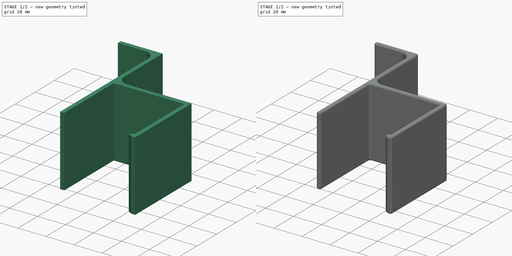
[diagram: build sequence overview — one tinted view per stage of 2, left to right]
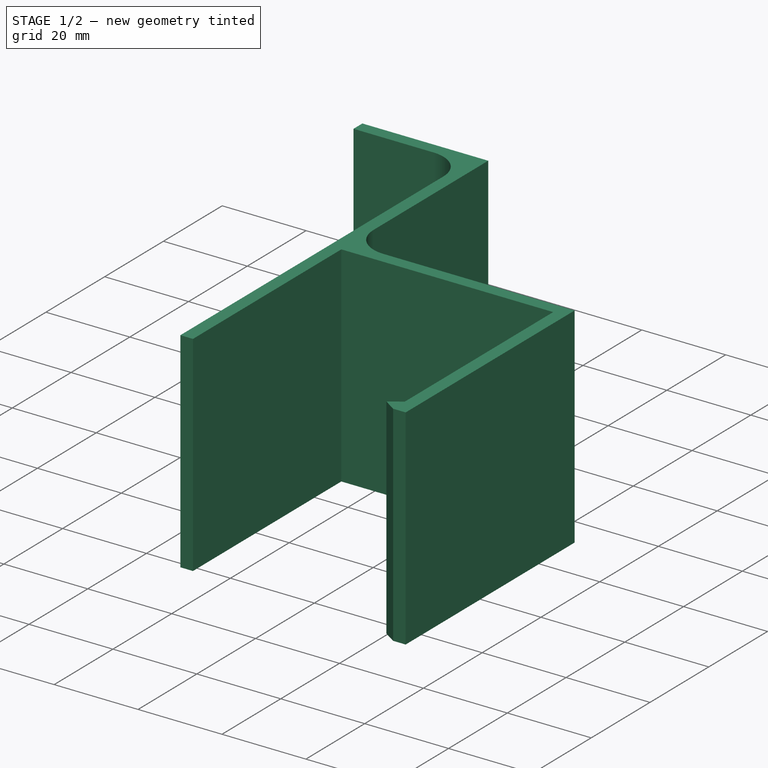
[diagram: stage 1 of 2 — iso view after this stage's code; geometry added in this stage tinted green]
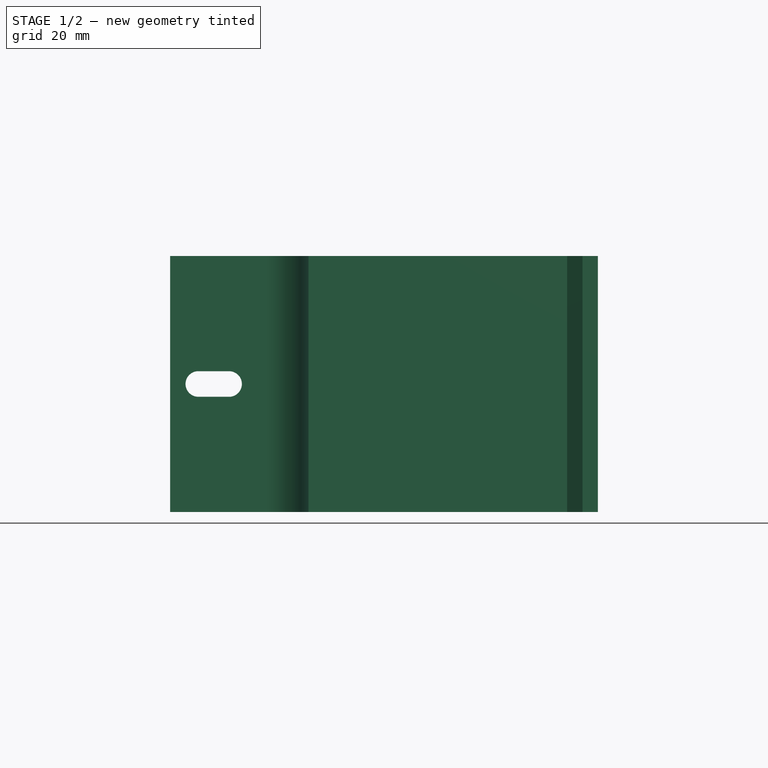
[diagram: stage 1 of 2 — front view after this stage's code; geometry added in this stage tinted green]
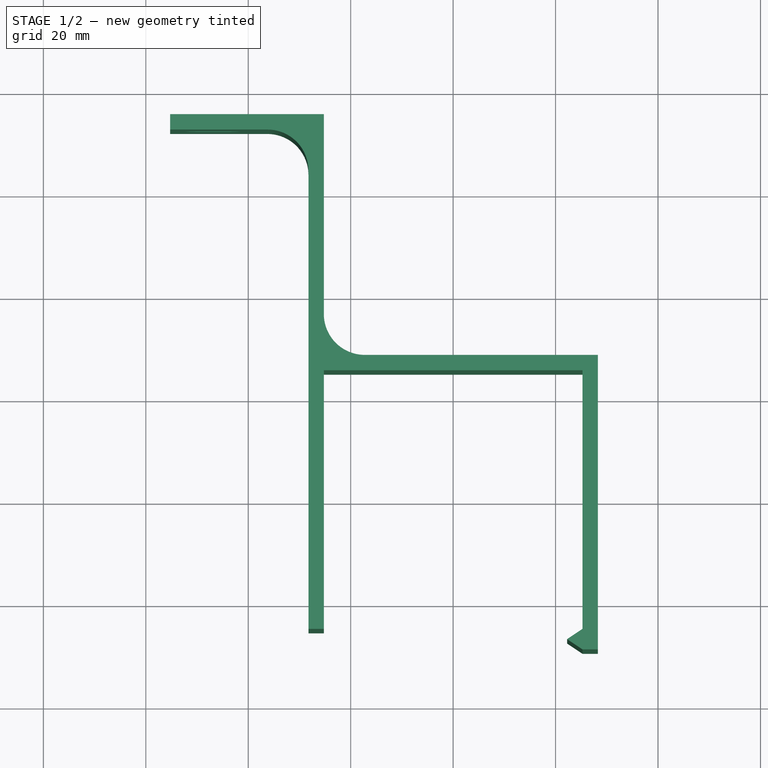
[diagram: stage 1 of 2 — top view after this stage's code; geometry added in this stage tinted green]
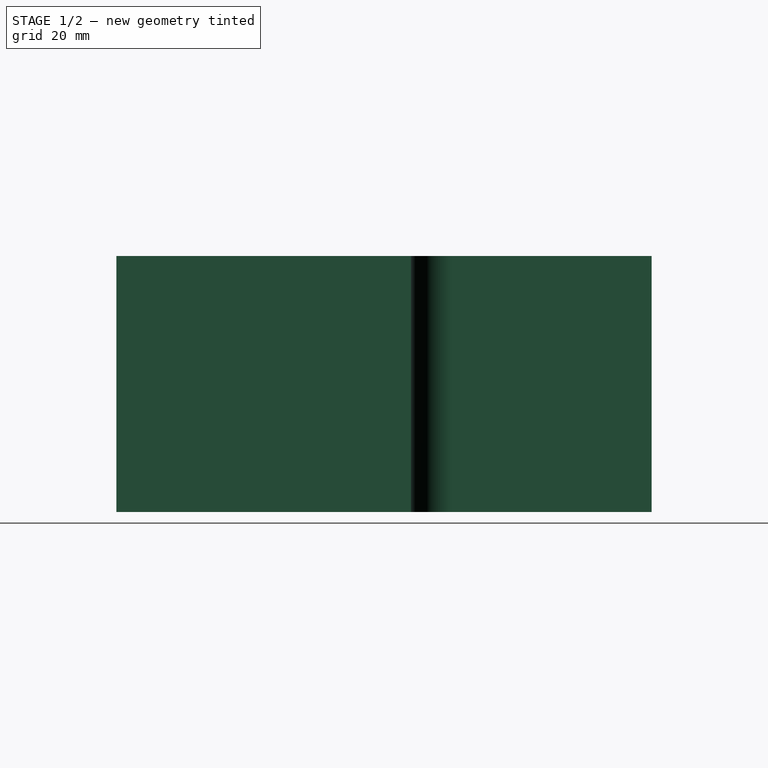
[diagram: stage 1 of 2 — right view after this stage's code; geometry added in this stage tinted green]
FCSTD DOCUMENT  (FreeCAD 0.18.3R)
Label: Hanger
License: All rights reserved
LicenseURL: http://en.wikipedia.org/wiki/All_rights_reserved
objects: Sketcher::SketchObject×2, PartDesign::Pad×1, PartDesign::Pocket×1, PartDesign::Fillet×1, PartDesign::Body×1, App::Part×1
note: 8 computed .brp shape members not serialized (recipe doc carries the construction recipe); baked Part::Feature solids carry a one-line shape summary decoded from their .brp

FEATURE [Sketcher::SketchObject] Sketch
  MapMode = 5
  Support = -> [XY_Plane001]
  sketch-geometry (21):
    g0: LineSegment StartX=-17.25 StartY=28.25 StartZ=0 EndX=28.25 EndY=28.25 EndZ=0
    g1: LineSegment StartX=28.25 StartY=28.25 StartZ=0 EndX=28.25 EndY=-29.25 EndZ=0
    g2: LineSegment [constr] StartX=28.25 StartY=-25.25 StartZ=0 EndX=25.25 EndY=-25.25 EndZ=0
    g3: LineSegment StartX=25.25 StartY=-25.25 StartZ=0 EndX=25.25 EndY=25.25 EndZ=0
    g4: LineSegment StartX=25.25 StartY=25.25 StartZ=0 EndX=-25.25 EndY=25.25 EndZ=0
    g5: LineSegment StartX=-25.25 StartY=25.25 StartZ=0 EndX=-25.25 EndY=-25.25 EndZ=0
    g6: LineSegment StartX=-25.25 StartY=-25.25 StartZ=0 EndX=-28.25 EndY=-25.25 EndZ=0
    g7: LineSegment StartX=-28.25 StartY=-25.25 StartZ=0 EndX=-28.25 EndY=64.25 EndZ=0
    g8: LineSegment [constr] StartX=-25.25 StartY=-25.25 StartZ=0 EndX=25.25 EndY=-25.25 EndZ=0
    g9: LineSegment StartX=25.25 StartY=-25.25 StartZ=0 EndX=22.25 EndY=-27.25 EndZ=0
    g10: LineSegment StartX=22.25 StartY=-27.25 StartZ=0 EndX=25.25 EndY=-29.25 EndZ=0
    g11: LineSegment StartX=25.25 StartY=-29.25 StartZ=0 EndX=28.25 EndY=-29.25 EndZ=0
    g12: LineSegment [constr] StartX=25.25 StartY=-25.25 StartZ=0 EndX=25.25 EndY=-29.25 EndZ=0
    g13: LineSegment [constr] StartX=25.25 StartY=25.25 StartZ=0 EndX=25.25 EndY=28.25 EndZ=0
    g14: LineSegment StartX=-25.25 StartY=75.25 StartZ=0 EndX=-25.25 EndY=36.25 EndZ=0
    g15: LineSegment [constr] StartX=-25.25 StartY=36.25 StartZ=0 EndX=-25.25 EndY=25.25 EndZ=0
    g16: ArcOfCircle CenterX=-17.25 CenterY=36.25 CenterZ=0 NormalX=0 NormalY=0 NormalZ=1 AngleXU=0 Radius=8 StartAngle=3.14159 EndAngle=4.71239
    g17: LineSegment StartX=-25.25 StartY=75.25 StartZ=0 EndX=-55.25 EndY=75.25 EndZ=0
    g18: LineSegment StartX=-55.25 StartY=75.25 StartZ=0 EndX=-55.25 EndY=72.25 EndZ=0
    g19: LineSegment StartX=-55.25 StartY=72.25 StartZ=0 EndX=-36.25 EndY=72.25 EndZ=0
    g20: ArcOfCircle CenterX=-36.25 CenterY=64.25 CenterZ=0 NormalX=0 NormalY=0 NormalZ=1 AngleXU=0 Radius=8 StartAngle=6e-16 EndAngle=1.5708
  constraints (57):
    c: Horizontal(g0)
    c: Coincident(g0,g1)
    c: Vertical(g1)
    c: Horizontal(g2)
    c: Coincident(g2,g3)
    c: Vertical(g3)
    c: Coincident(g3,g4)
    c: Horizontal(g4)
    c: Coincident(g4,g5)
    c: Vertical(g5)
    c: Coincident(g5,g6)
    c: Horizontal(g6)
    c: Coincident(g6,g7)
    c: Vertical(g7)
    c: Coincident(g8,g5)
    c: Coincident(g8,g2)
    c: Horizontal(g8)
    c: Equal(g6,g2)
    c: DistanceX(g4,g4) = 50.5  'Distance'
    c: Equal(g4,g5)
    c: PointOnObject(g2,g1)
    c: Coincident(g3,g9)
    c: Coincident(g9,g10)
    c: Coincident(g10,g11)
    c: Horizontal(g11)
    c: Coincident(g1,g11)
    c: Coincident(g12,g3)
    c: Coincident(g12,g10)
    c: Vertical(g12)
    c: Equal(g9,g10)
    c: DistanceY(g12,g12) = 4
    c: DistanceX(g9,g10) = 3
    c: Symmetric(g5,g3,g-1)  '__ANCHOR__'
    c: DistanceX(g6,g6) = 3
    c: Coincident(g13,g3)
    c: PointOnObject(g13,g0)
    c: Vertical(g13)
    c: Equal(g13,g2)
    c: Vertical(g14)
    c: Coincident(g15,g14)
    c: Coincident(g15,g4)
    c: Vertical(g15)
    c: Tangent(g16,g14) = -1.5708
    c: Tangent(g0,g16) = -1.5708
    c: Radius(g16) = 8
    c: Coincident(g14,g17)
    c: Horizontal(g17)
    c: Coincident(g17,g18)
    c: Vertical(g18)
    c: Coincident(g18,g19)
    c: Horizontal(g19)
    c: Tangent(g7,g20) = -1.5708
    c: Tangent(g19,g20) = 1.5708
    c: Equal(g13,g18)
    c: Equal(g20,g16)
    c: DistanceY(g4,g14) = 50
    c: DistanceX(g17,g14) = 30  'FlapLength'
FEATURE [PartDesign::Pad] Pad
  Length = 50
  Length2 = 100
  Profile = -> Sketch
  Type = 0
FEATURE [Sketcher::SketchObject] Sketch001
  MapMode = 5
  Placement = pos=(0,0,0) rot=(1,0,0;1.5708rad)
  Support = -> [XZ_Plane001]
  expr: Constraints[10] = Sketch.Constraints.Distance / 2 + Sketch.Constraints.FlapLength - Constraints.HoleLength / 2 - Constraints.HoleRadius - 3mm
  expr: Constraints[8] = Pad.Length / 2
  sketch-geometry (5):
    g0: ArcOfCircle CenterX=-49.75 CenterY=25 CenterZ=0 NormalX=0 NormalY=0 NormalZ=1 AngleXU=0 Radius=2.5 StartAngle=1.5708 EndAngle=4.71239
    g1: ArcOfCircle CenterX=-43.75 CenterY=25 CenterZ=0 NormalX=0 NormalY=0 NormalZ=1 AngleXU=0 Radius=2.5 StartAngle=4.71239 EndAngle=7.85398
    g2: LineSegment StartX=-49.75 StartY=22.5 StartZ=0 EndX=-43.75 EndY=22.5 EndZ=0
    g3: LineSegment StartX=-49.75 StartY=27.5 StartZ=0 EndX=-43.75 EndY=27.5 EndZ=0
    g4: GeomPoint X=-46.75 Y=25 Z=0
  constraints (11):
    c: Tangent(g0,g3) = 1.5708
    c: Tangent(g0,g2) = -1.5708
    c: Tangent(g2,g1) = -1.5708
    c: Tangent(g3,g1) = 1.5708
    c: Horizontal(g2)
    c: Equal(g0,g1)
    c: Radius(g1) = 2.5  'HoleRadius'
    c: DistanceX(g3,g3) = 6  'HoleLength'
    c: DistanceY(g-1,g1) = 25
    c: Symmetric(g0,g1,g4)
    c: DistanceX(g4,g-1) = 46.75
FEATURE [PartDesign::Pocket] Pocket
  BaseFeature = -> Pad
  Length = 5
  Length2 = 100
  Profile = -> Sketch001
  Type = 1
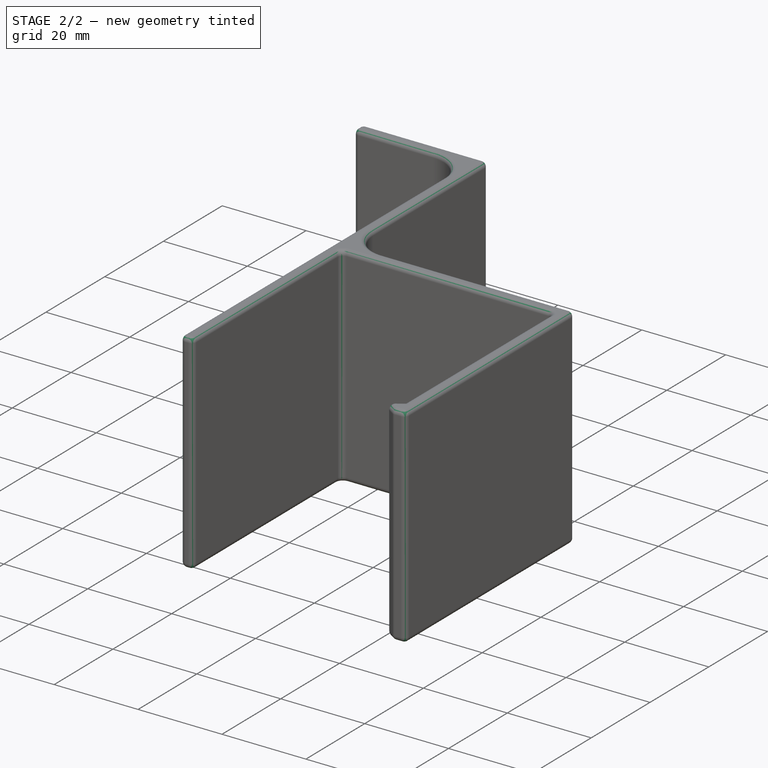
[diagram: stage 2 of 2 — iso view after this stage's code; geometry added in this stage tinted green]
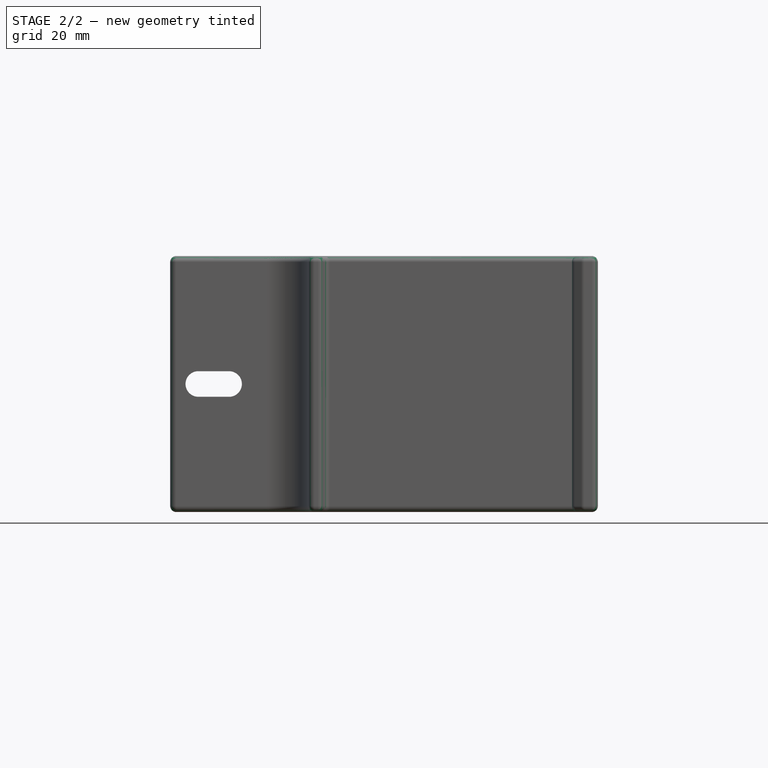
[diagram: stage 2 of 2 — front view after this stage's code; geometry added in this stage tinted green]
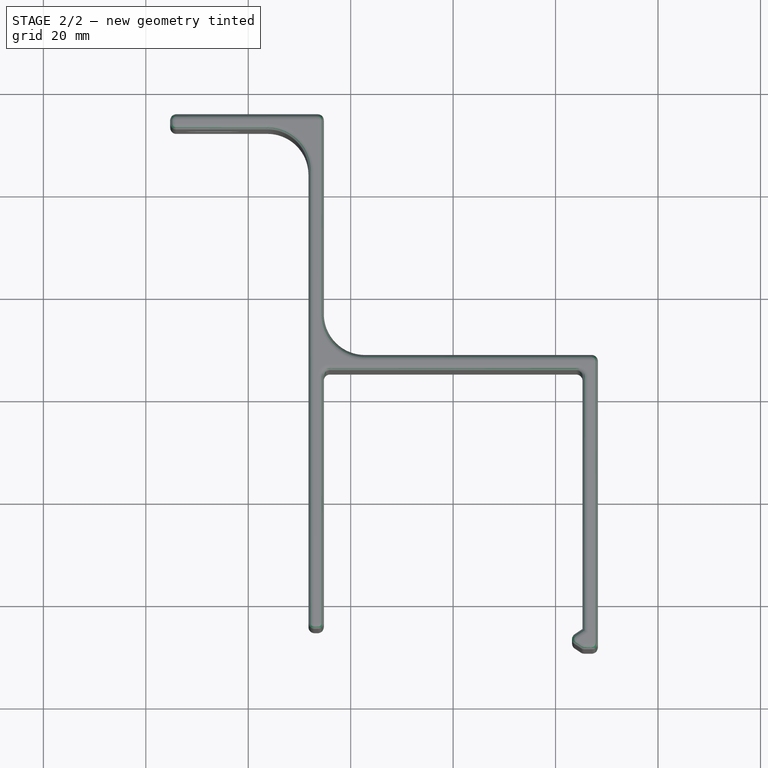
[diagram: stage 2 of 2 — top view after this stage's code; geometry added in this stage tinted green]
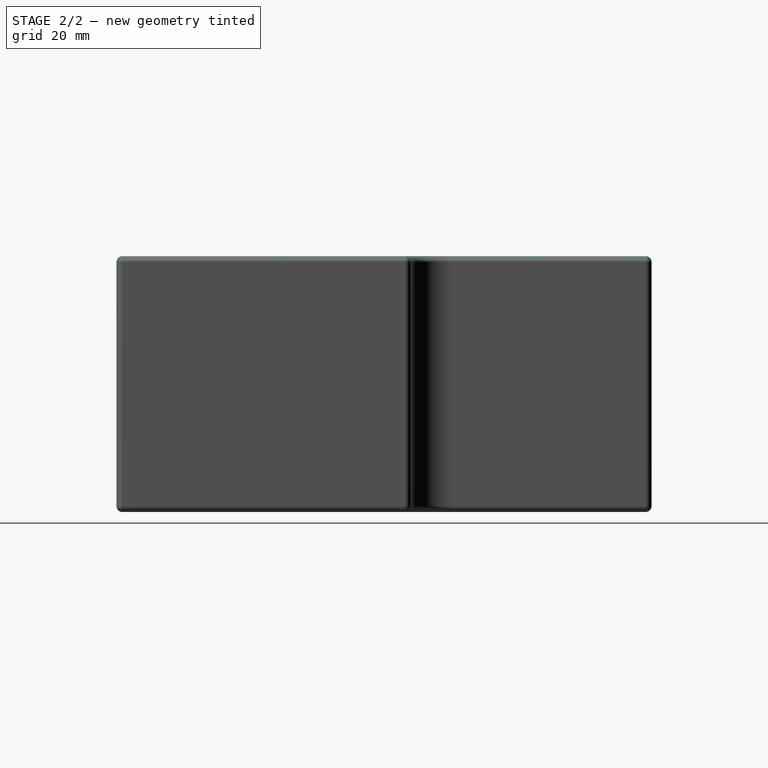
[diagram: stage 2 of 2 — right view after this stage's code; geometry added in this stage tinted green]
FEATURE [PartDesign::Fillet] Fillet
  Base = -> Pocket [Face13,Face12,Face4,Face12,Face5,Face6,Face13,Face19,Edge56,Edge55,Edge10,Edge53,Edge1]
  BaseFeature = -> Pocket
  Radius = 1.2
FEATURE [PartDesign::Body] Body
  Group = -> [Sketch,Pad,Sketch001,Pocket,Fillet]
  Origin = -> Origin001
  Tip = -> Fillet
FEATURE [App::Part] Part
  Group = -> [Body]
  Origin = -> Origin
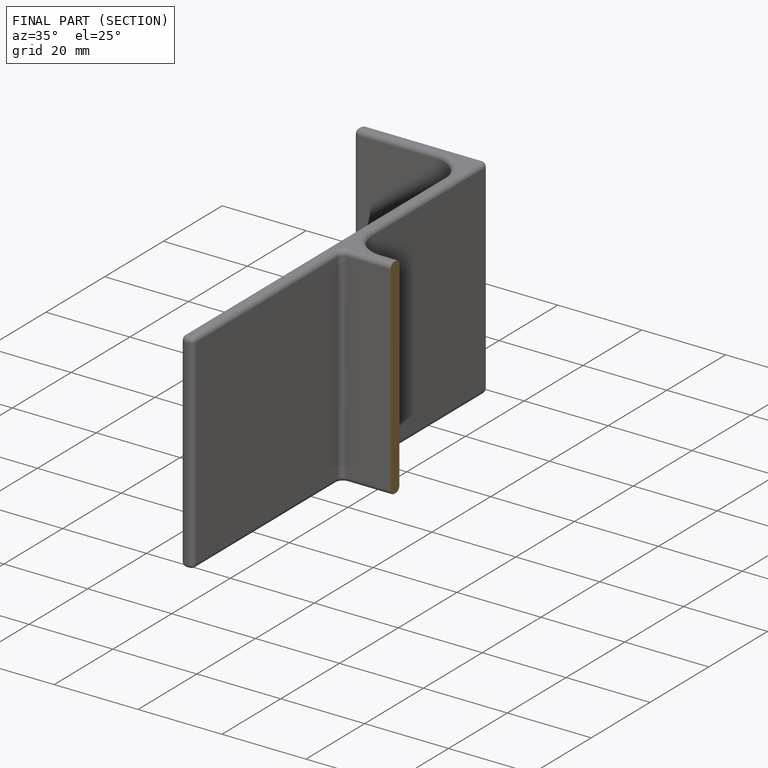
[diagram: finished part — half-section view (interior)]
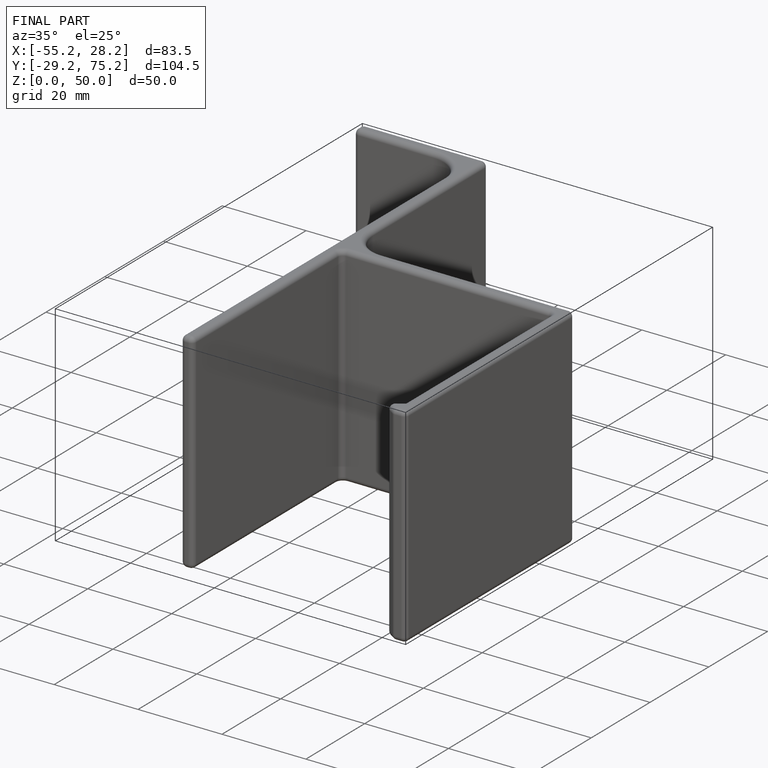
[diagram: finished part — iso view with bounding-box wireframe]
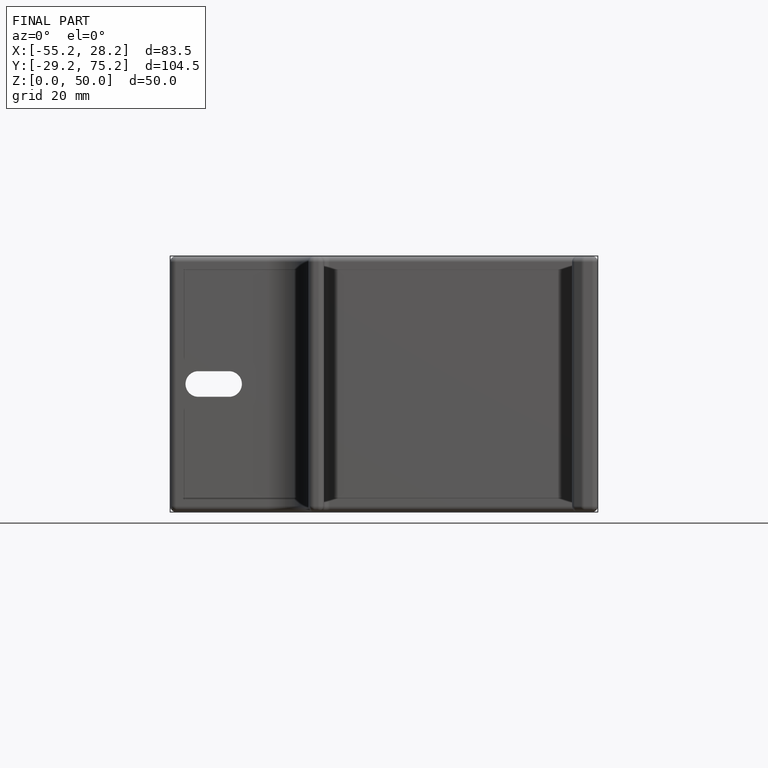
[diagram: finished part — front view with bounding-box wireframe]
